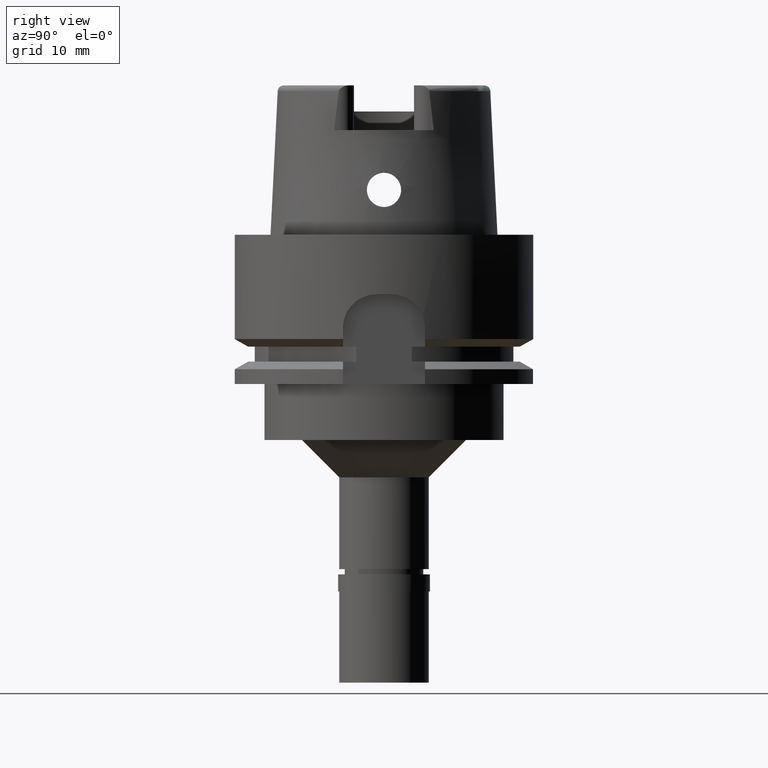
[diagram: clean part render]
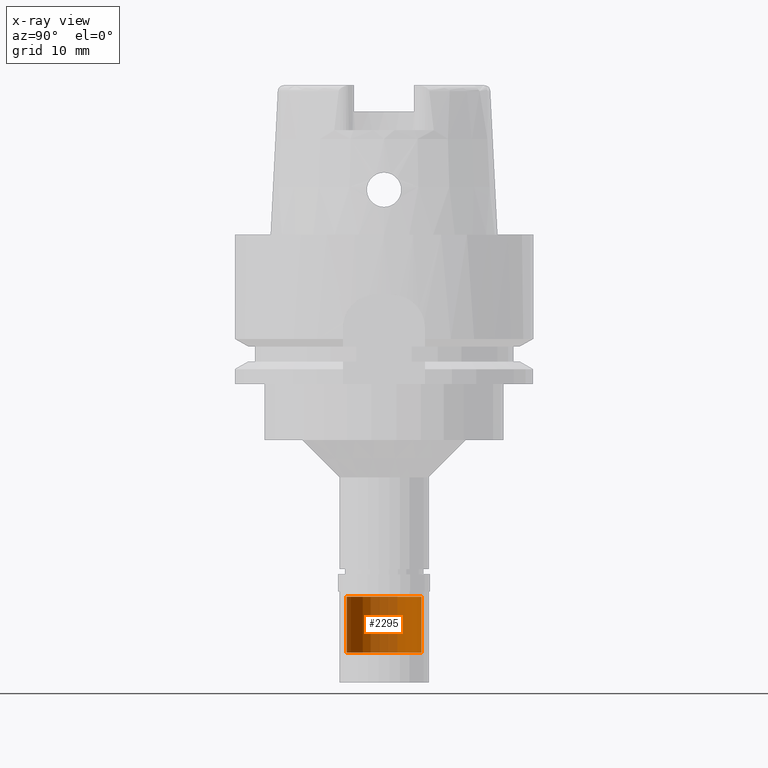
[diagram: x-ray — body ghosted, one internal face saturated and labeled with its STEP entity id]
A machine part, right view, then the same camera in x-ray: the body is ghosted and one INTERNAL B-rep face — a face not visible from any outside direction — is saturated and labeled: STEP entity #2295.
In plain terms, the highlighted cylindrical surface (partial cylindrical patch) has radius 5 mm, axis along (0, 0, 1).
Its self-contained STEP definition (entity closure, byte-faithful):
#62 = LINE ( 'NONE', #1714, #518 ) ;
#87 = EDGE_CURVE ( 'NONE', #3385, #1019, #62, .T. ) ;
#476 = EDGE_CURVE ( 'NONE', #2758, #1019, #865, .T. ) ;
#518 = VECTOR ( 'NONE', #2963, 1000.000000000000000 ) ;
#865 = CIRCLE ( 'NONE', #3149, 5.000000000000000000 ) ;
#910 = VERTEX_POINT ( 'NONE', #4717 ) ;
#919 = ORIENTED_EDGE ( 'NONE', *, *, #1586, .T. ) ;
#944 = DIRECTION ( 'NONE',  ( 0.0000000000000000000, 1.000000000000000000, 0.0000000000000000000 ) ) ;
#1019 = VERTEX_POINT ( 'NONE', #3267 ) ;
#1495 = ORIENTED_EDGE ( 'NONE', *, *, #2858, .T. ) ;
#1586 = EDGE_CURVE ( 'NONE', #910, #2758, #2052, .T. ) ;
#1634 = EDGE_LOOP ( 'NONE', ( #2553, #4733, #1495, #919 ) ) ;
#1714 = CARTESIAN_POINT ( 'NONE',  ( 0.0000000000000000000, -5.000000000000000000, -48.50000000000000000 ) ) ;
#1927 = CARTESIAN_POINT ( 'NONE',  ( 0.0000000000000000000, 0.0000000000000000000, -48.50000000000000000 ) ) ;
#2052 = LINE ( 'NONE', #3286, #2459 ) ;
#2295 = ADVANCED_FACE ( 'NONE', ( #2666 ), #3562, .T. ) ;
#2459 = VECTOR ( 'NONE', #4957, 1000.000000000000000 ) ;
#2553 = ORIENTED_EDGE ( 'NONE', *, *, #476, .T. ) ;
#2666 = FACE_OUTER_BOUND ( 'NONE', #1634, .T. ) ;
#2694 = CARTESIAN_POINT ( 'NONE',  ( 0.0000000000000000000, 0.0000000000000000000, -59.79999999999999716 ) ) ;
#2758 = VERTEX_POINT ( 'NONE', #4161 ) ;
#2827 = DIRECTION ( 'NONE',  ( 0.0000000000000000000, -1.000000000000000000, 0.0000000000000000000 ) ) ;
#2858 = EDGE_CURVE ( 'NONE', #3385, #910, #5090, .T. ) ;
#2963 = DIRECTION ( 'NONE',  ( 0.0000000000000000000, 0.0000000000000000000, -1.000000000000000000 ) ) ;
#3043 = DIRECTION ( 'NONE',  ( 0.0000000000000000000, 1.000000000000000000, 0.0000000000000000000 ) ) ;
#3081 = DIRECTION ( 'NONE',  ( 0.0000000000000000000, 0.0000000000000000000, 1.000000000000000000 ) ) ;
#3149 = AXIS2_PLACEMENT_3D ( 'NONE', #5222, #3532, #3043 ) ;
#3267 = CARTESIAN_POINT ( 'NONE',  ( 0.0000000000000000000, -5.000000000000000000, -56.00000000000000000 ) ) ;
#3286 = CARTESIAN_POINT ( 'NONE',  ( 0.0000000000000000000, 5.000000000000000000, -48.50000000000000000 ) ) ;
#3385 = VERTEX_POINT ( 'NONE', #3705 ) ;
#3532 = DIRECTION ( 'NONE',  ( 0.0000000000000000000, 0.0000000000000000000, 1.000000000000000000 ) ) ;
#3562 = CYLINDRICAL_SURFACE ( 'NONE', #4751, 5.000000000000000000 ) ;
#3705 = CARTESIAN_POINT ( 'NONE',  ( 0.0000000000000000000, -5.000000000000000000, -48.50000000000000000 ) ) ;
#4161 = CARTESIAN_POINT ( 'NONE',  ( 0.0000000000000000000, 5.000000000000000000, -56.00000000000000000 ) ) ;
#4717 = CARTESIAN_POINT ( 'NONE',  ( 0.0000000000000000000, 5.000000000000000000, -48.50000000000000000 ) ) ;
#4733 = ORIENTED_EDGE ( 'NONE', *, *, #87, .F. ) ;
#4751 = AXIS2_PLACEMENT_3D ( 'NONE', #2694, #3081, #944 ) ;
#4865 = DIRECTION ( 'NONE',  ( 0.0000000000000000000, 0.0000000000000000000, -1.000000000000000000 ) ) ;
#4957 = DIRECTION ( 'NONE',  ( 0.0000000000000000000, 0.0000000000000000000, -1.000000000000000000 ) ) ;
#5090 = CIRCLE ( 'NONE', #5274, 5.000000000000000000 ) ;
#5222 = CARTESIAN_POINT ( 'NONE',  ( 0.0000000000000000000, 0.0000000000000000000, -56.00000000000000000 ) ) ;
#5274 = AXIS2_PLACEMENT_3D ( 'NONE', #1927, #4865, #2827 ) ;